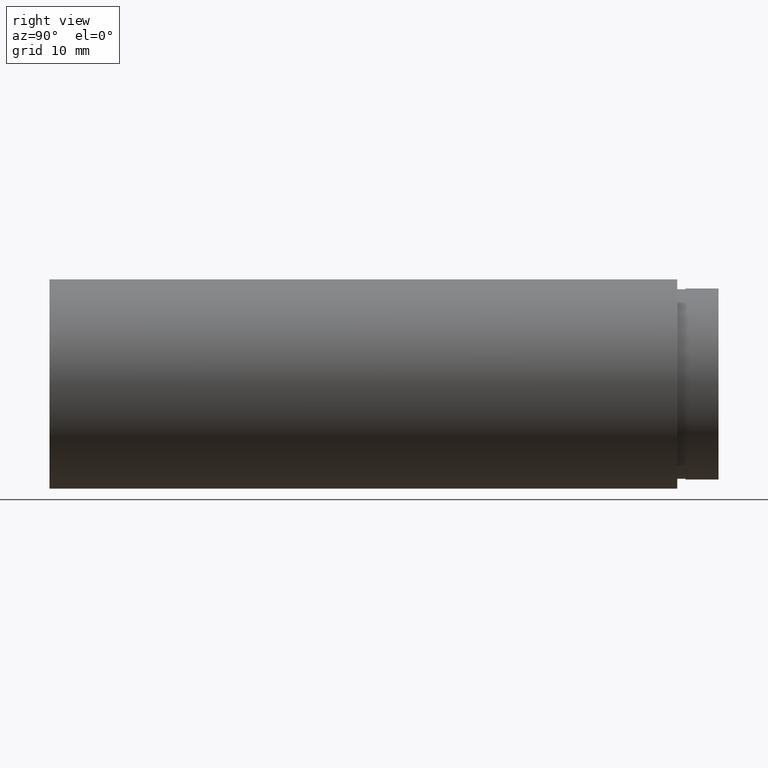
[diagram: clean part render]
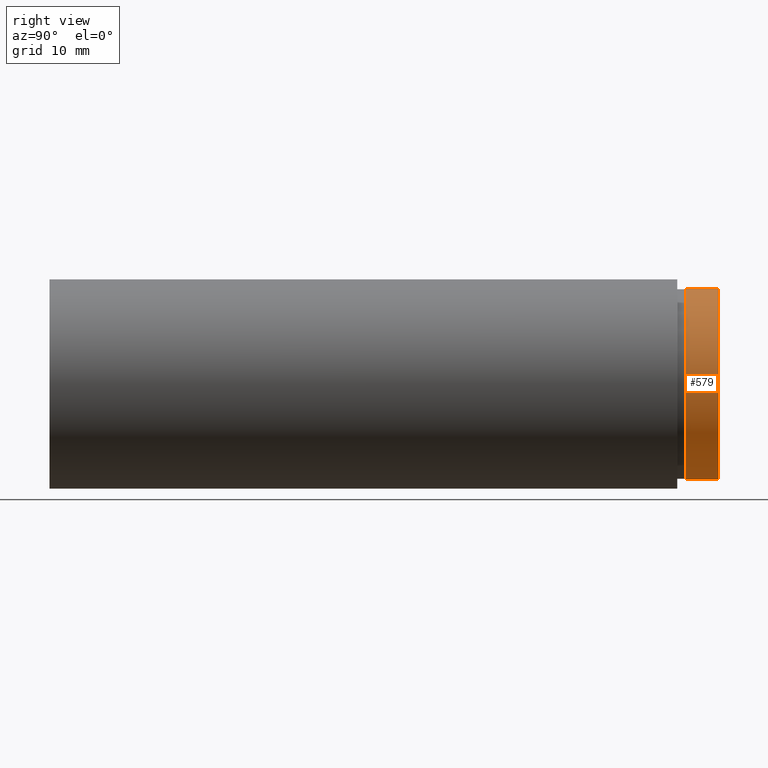
[diagram: same view with one face highlighted and labeled with its STEP entity id]
A machine part, right view. The second image highlights one B-rep face of the part: STEP entity #579.
In plain terms, the highlighted cylindrical surface (partial cylindrical patch) has radius 11.6 mm, axis along (-0, 1, -0).
Its self-contained STEP definition (entity closure, byte-faithful):
#5 = ORIENTED_EDGE ( 'NONE', *, *, #114, .F. ) ;
#12 = DIRECTION ( 'NONE',  ( -0.0000000000000000000, 1.000000000000000000, -0.0000000000000000000 ) ) ;
#26 = VECTOR ( 'NONE', #583, 1000.000000000000000 ) ;
#30 = EDGE_CURVE ( 'NONE', #298, #33, #402, .T. ) ;
#33 = VERTEX_POINT ( 'NONE', #523 ) ;
#80 = CARTESIAN_POINT ( 'NONE',  ( 1.420590287010930900E-015, 161.3761669434274500, -11.60000000000001000 ) ) ;
#89 = VERTEX_POINT ( 'NONE', #297 ) ;
#105 = CARTESIAN_POINT ( 'NONE',  ( 0.0000000000000000000, 77.19999999999998900, 0.0000000000000000000 ) ) ;
#114 = EDGE_CURVE ( 'NONE', #470, #298, #295, .T. ) ;
#119 = CARTESIAN_POINT ( 'NONE',  ( 0.0000000000000000000, 81.19999999999998900, 11.60000000000001000 ) ) ;
#124 = EDGE_CURVE ( 'NONE', #470, #89, #324, .T. ) ;
#136 = AXIS2_PLACEMENT_3D ( 'NONE', #105, #12, #253 ) ;
#151 = CARTESIAN_POINT ( 'NONE',  ( 0.0000000000000000000, 81.19999999999998900, 0.0000000000000000000 ) ) ;
#165 = AXIS2_PLACEMENT_3D ( 'NONE', #441, #537, #578 ) ;
#244 = ORIENTED_EDGE ( 'NONE', *, *, #30, .F. ) ;
#249 = CARTESIAN_POINT ( 'NONE',  ( 0.0000000000000000000, 161.3761669434274500, 11.60000000000001000 ) ) ;
#253 = DIRECTION ( 'NONE',  ( 0.0000000000000000000, 0.0000000000000000000, 1.000000000000000000 ) ) ;
#270 = CYLINDRICAL_SURFACE ( 'NONE', #165, 11.60000000000001000 ) ;
#282 = CARTESIAN_POINT ( 'NONE',  ( 0.0000000000000000000, 77.19999999999998900, 11.60000000000001000 ) ) ;
#295 = LINE ( 'NONE', #249, #26 ) ;
#297 = CARTESIAN_POINT ( 'NONE',  ( 1.420590287010930900E-015, 77.19999999999998900, -11.60000000000001000 ) ) ;
#298 = VERTEX_POINT ( 'NONE', #119 ) ;
#320 = AXIS2_PLACEMENT_3D ( 'NONE', #151, #528, #389 ) ;
#324 = CIRCLE ( 'NONE', #136, 11.60000000000001000 ) ;
#329 = VECTOR ( 'NONE', #605, 1000.000000000000000 ) ;
#389 = DIRECTION ( 'NONE',  ( 0.0000000000000000000, 0.0000000000000000000, 1.000000000000000000 ) ) ;
#400 = EDGE_CURVE ( 'NONE', #89, #33, #405, .T. ) ;
#402 = CIRCLE ( 'NONE', #320, 11.60000000000001000 ) ;
#405 = LINE ( 'NONE', #80, #329 ) ;
#424 = FACE_OUTER_BOUND ( 'NONE', #434, .T. ) ;
#434 = EDGE_LOOP ( 'NONE', ( #563, #538, #244, #5 ) ) ;
#441 = CARTESIAN_POINT ( 'NONE',  ( 0.0000000000000000000, 161.3761669434274500, 0.0000000000000000000 ) ) ;
#470 = VERTEX_POINT ( 'NONE', #282 ) ;
#523 = CARTESIAN_POINT ( 'NONE',  ( 1.420590287010930900E-015, 81.19999999999998900, -11.60000000000001000 ) ) ;
#528 = DIRECTION ( 'NONE',  ( -0.0000000000000000000, 1.000000000000000000, -0.0000000000000000000 ) ) ;
#537 = DIRECTION ( 'NONE',  ( -0.0000000000000000000, 1.000000000000000000, -0.0000000000000000000 ) ) ;
#538 = ORIENTED_EDGE ( 'NONE', *, *, #400, .T. ) ;
#563 = ORIENTED_EDGE ( 'NONE', *, *, #124, .T. ) ;
#578 = DIRECTION ( 'NONE',  ( 0.0000000000000000000, 0.0000000000000000000, 1.000000000000000000 ) ) ;
#579 = ADVANCED_FACE ( 'NONE', ( #424 ), #270, .T. ) ;
#583 = DIRECTION ( 'NONE',  ( -0.0000000000000000000, 1.000000000000000000, -0.0000000000000000000 ) ) ;
#605 = DIRECTION ( 'NONE',  ( -0.0000000000000000000, 1.000000000000000000, -0.0000000000000000000 ) ) ;